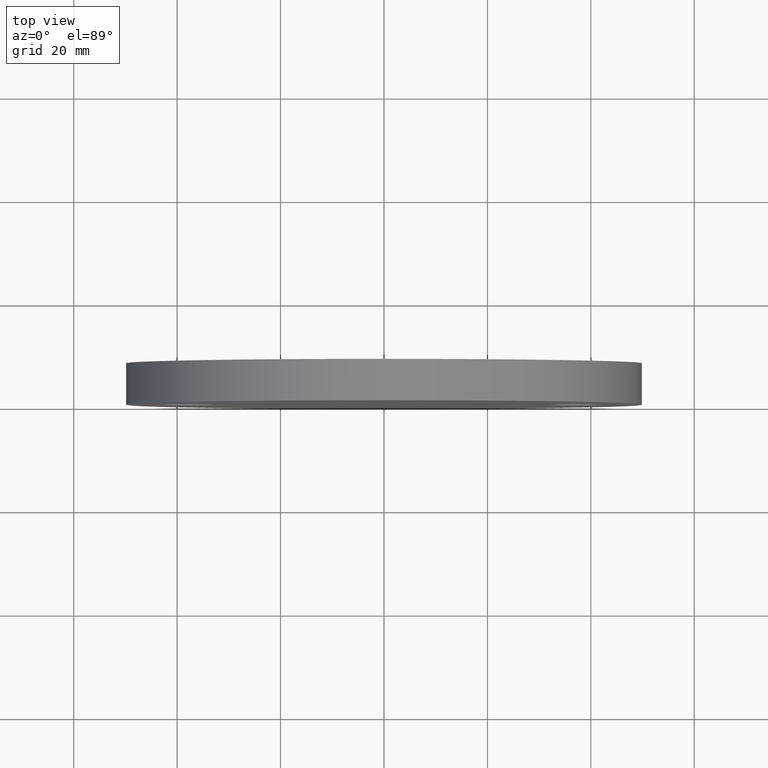
[diagram: clean part render]
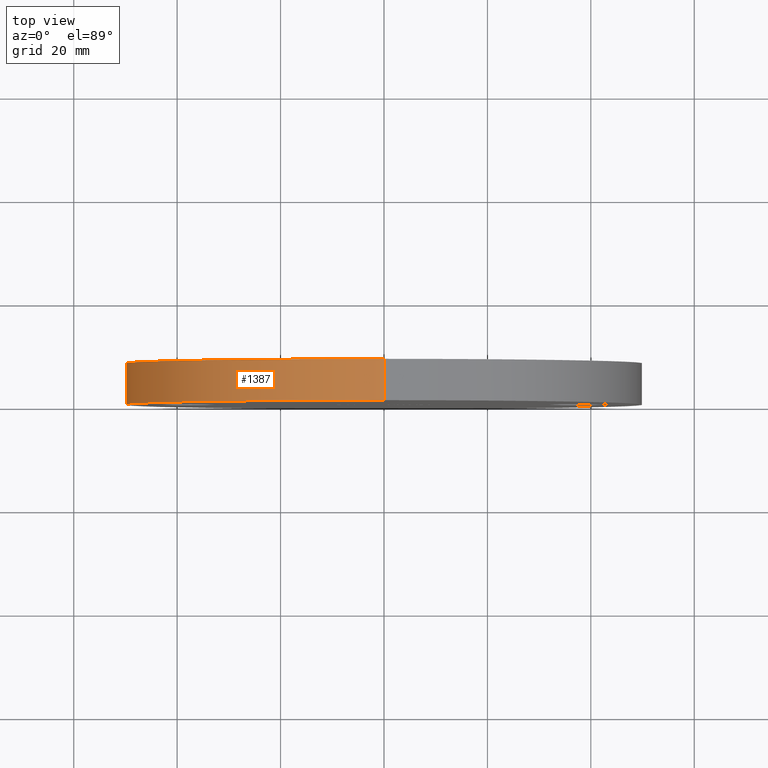
[diagram: same view with one face highlighted and labeled with its STEP entity id]
A machine part, top view. The second image highlights one B-rep face of the part: STEP entity #1387.
In plain terms, the highlighted cylindrical surface (partial cylindrical patch) has radius 50 mm, axis along (-0, -1, -0).
Its self-contained STEP definition (entity closure, byte-faithful):
#41 = CARTESIAN_POINT ( 'NONE',  ( 0.0000000000000000000, 8.000000000000000000, -50.00000000000000000 ) ) ;
#82 = AXIS2_PLACEMENT_3D ( 'NONE', #6282, #3380, #4390 ) ;
#327 = CARTESIAN_POINT ( 'NONE',  ( 6.123233995736766100E-015, 0.0000000000000000000, 50.00000000000000000 ) ) ;
#663 = EDGE_LOOP ( 'NONE', ( #6256, #10024, #1917, #3816 ) ) ;
#844 = VERTEX_POINT ( 'NONE', #327 ) ;
#952 = EDGE_CURVE ( 'NONE', #9825, #9905, #10933, .T. ) ;
#1067 = CYLINDRICAL_SURFACE ( 'NONE', #82, 50.00000000000000000 ) ;
#1387 = ADVANCED_FACE ( 'NONE', ( #5287 ), #1067, .T. ) ;
#1496 = DIRECTION ( 'NONE',  ( 0.0000000000000000000, 0.0000000000000000000, 1.000000000000000000 ) ) ;
#1917 = ORIENTED_EDGE ( 'NONE', *, *, #3279, .T. ) ;
#2104 = CARTESIAN_POINT ( 'NONE',  ( 0.0000000000000000000, 0.0000000000000000000, -50.00000000000000000 ) ) ;
#3086 = DIRECTION ( 'NONE',  ( -0.0000000000000000000, -1.000000000000000000, -0.0000000000000000000 ) ) ;
#3279 = EDGE_CURVE ( 'NONE', #9825, #3307, #3396, .T. ) ;
#3307 = VERTEX_POINT ( 'NONE', #2104 ) ;
#3346 = DIRECTION ( 'NONE',  ( 0.0000000000000000000, 1.000000000000000000, 0.0000000000000000000 ) ) ;
#3380 = DIRECTION ( 'NONE',  ( -0.0000000000000000000, -1.000000000000000000, -0.0000000000000000000 ) ) ;
#3396 = LINE ( 'NONE', #9834, #8560 ) ;
#3816 = ORIENTED_EDGE ( 'NONE', *, *, #3854, .T. ) ;
#3854 = EDGE_CURVE ( 'NONE', #3307, #844, #6836, .T. ) ;
#4390 = DIRECTION ( 'NONE',  ( 0.0000000000000000000, 0.0000000000000000000, -1.000000000000000000 ) ) ;
#5287 = FACE_OUTER_BOUND ( 'NONE', #663, .T. ) ;
#5421 = CARTESIAN_POINT ( 'NONE',  ( 6.123233995736766100E-015, 8.000000000000000000, 50.00000000000000000 ) ) ;
#5517 = CARTESIAN_POINT ( 'NONE',  ( 0.0000000000000000000, 8.000000000000000000, 0.0000000000000000000 ) ) ;
#6001 = CARTESIAN_POINT ( 'NONE',  ( 6.123233995736766100E-015, 8.000000000000000000, 50.00000000000000000 ) ) ;
#6256 = ORIENTED_EDGE ( 'NONE', *, *, #10447, .F. ) ;
#6282 = CARTESIAN_POINT ( 'NONE',  ( 0.0000000000000000000, 8.000000000000000000, 0.0000000000000000000 ) ) ;
#6836 = CIRCLE ( 'NONE', #9312, 50.00000000000000000 ) ;
#7257 = DIRECTION ( 'NONE',  ( -0.0000000000000000000, -1.000000000000000000, -0.0000000000000000000 ) ) ;
#7316 = CARTESIAN_POINT ( 'NONE',  ( 0.0000000000000000000, 0.0000000000000000000, 0.0000000000000000000 ) ) ;
#8420 = DIRECTION ( 'NONE',  ( 0.0000000000000000000, 1.000000000000000000, 0.0000000000000000000 ) ) ;
#8560 = VECTOR ( 'NONE', #3086, 1000.000000000000000 ) ;
#9312 = AXIS2_PLACEMENT_3D ( 'NONE', #7316, #3346, #10416 ) ;
#9825 = VERTEX_POINT ( 'NONE', #41 ) ;
#9834 = CARTESIAN_POINT ( 'NONE',  ( 0.0000000000000000000, 8.000000000000000000, -50.00000000000000000 ) ) ;
#9905 = VERTEX_POINT ( 'NONE', #6001 ) ;
#10024 = ORIENTED_EDGE ( 'NONE', *, *, #952, .F. ) ;
#10416 = DIRECTION ( 'NONE',  ( 0.0000000000000000000, 0.0000000000000000000, 1.000000000000000000 ) ) ;
#10447 = EDGE_CURVE ( 'NONE', #9905, #844, #12244, .T. ) ;
#10543 = AXIS2_PLACEMENT_3D ( 'NONE', #5517, #8420, #1496 ) ;
#10933 = CIRCLE ( 'NONE', #10543, 50.00000000000000000 ) ;
#11288 = VECTOR ( 'NONE', #7257, 1000.000000000000000 ) ;
#12244 = LINE ( 'NONE', #5421, #11288 ) ;